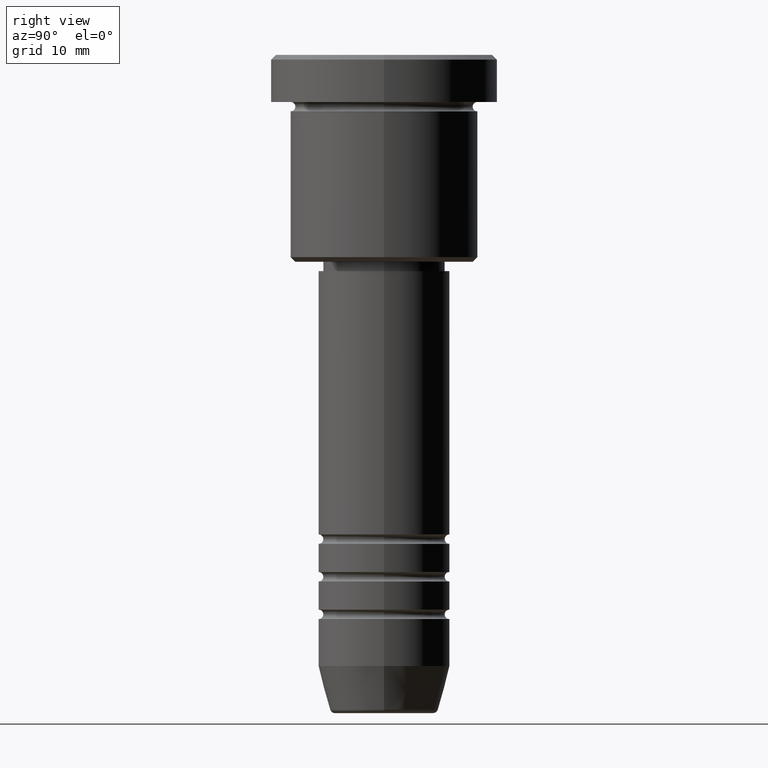
[diagram: clean part render]
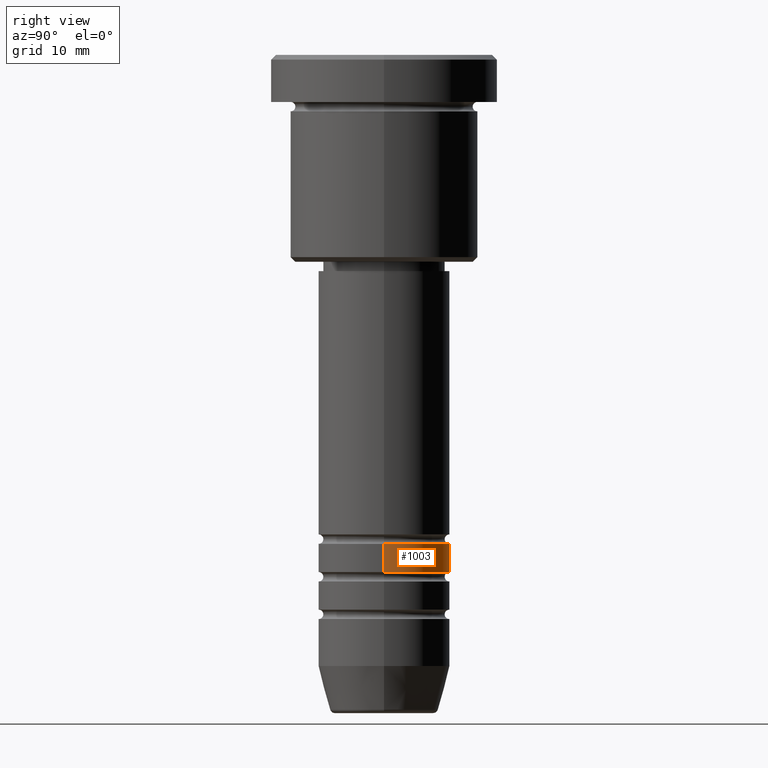
[diagram: same view with one face highlighted and labeled with its STEP entity id]
A machine part, right view. The second image highlights one B-rep face of the part: STEP entity #1003.
In plain terms, the highlighted cylindrical surface (partial cylindrical patch) has radius 7 mm, axis along (-0, -0, 1).
Its self-contained STEP definition (entity closure, byte-faithful):
#52 = CARTESIAN_POINT ( 'NONE',  ( 0.000000000000000000, 0.000000000000000000, -54.99999999999999289 ) ) ;
#56 = LINE ( 'NONE', #776, #902 ) ;
#75 = CARTESIAN_POINT ( 'NONE',  ( 7.000000000000002665, 0.000000000000000000, -54.99999999999999289 ) ) ;
#97 = VERTEX_POINT ( 'NONE', #75 ) ;
#99 = AXIS2_PLACEMENT_3D ( 'NONE', #52, #960, #333 ) ;
#104 = EDGE_CURVE ( 'NONE', #1062, #679, #878, .T. ) ;
#139 = EDGE_LOOP ( 'NONE', ( #1056, #398, #216, #207 ) ) ;
#154 = DIRECTION ( 'NONE',  ( 1.000000000000000000, 0.000000000000000000, 0.000000000000000000 ) ) ;
#207 = ORIENTED_EDGE ( 'NONE', *, *, #882, .F. ) ;
#216 = ORIENTED_EDGE ( 'NONE', *, *, #104, .F. ) ;
#250 = CARTESIAN_POINT ( 'NONE',  ( 0.000000000000000000, 0.000000000000000000, -52.00000000000000000 ) ) ;
#252 = EDGE_CURVE ( 'NONE', #97, #1015, #1082, .T. ) ;
#268 = CARTESIAN_POINT ( 'NONE',  ( 0.000000000000000000, 0.000000000000000000, 0.000000000000000000 ) ) ;
#333 = DIRECTION ( 'NONE',  ( 1.000000000000000000, 0.000000000000000000, 0.000000000000000000 ) ) ;
#364 = CYLINDRICAL_SURFACE ( 'NONE', #854, 7.000000000000000888 ) ;
#369 = CARTESIAN_POINT ( 'NONE',  ( -7.000000000000000000, 8.572527594031473190E-16, -52.00000000000000000 ) ) ;
#374 = AXIS2_PLACEMENT_3D ( 'NONE', #250, #969, #154 ) ;
#398 = ORIENTED_EDGE ( 'NONE', *, *, #859, .T. ) ;
#612 = LINE ( 'NONE', #860, #1042 ) ;
#679 = VERTEX_POINT ( 'NONE', #369 ) ;
#714 = DIRECTION ( 'NONE',  ( 1.000000000000000000, 0.000000000000000000, 0.000000000000000000 ) ) ;
#776 = CARTESIAN_POINT ( 'NONE',  ( -7.000000000000000888, 8.572527594031474176E-16, 0.000000000000000000 ) ) ;
#781 = DIRECTION ( 'NONE',  ( -0.000000000000000000, -0.000000000000000000, 1.000000000000000000 ) ) ;
#802 = CARTESIAN_POINT ( 'NONE',  ( -7.000000000000002665, 8.572527594031475162E-16, -54.99999999999999289 ) ) ;
#849 = DIRECTION ( 'NONE',  ( -0.000000000000000000, -0.000000000000000000, 1.000000000000000000 ) ) ;
#854 = AXIS2_PLACEMENT_3D ( 'NONE', #268, #888, #714 ) ;
#859 = EDGE_CURVE ( 'NONE', #1015, #679, #56, .T. ) ;
#860 = CARTESIAN_POINT ( 'NONE',  ( 7.000000000000000888, 0.000000000000000000, 0.000000000000000000 ) ) ;
#878 = CIRCLE ( 'NONE', #374, 7.000000000000000000 ) ;
#882 = EDGE_CURVE ( 'NONE', #97, #1062, #612, .T. ) ;
#888 = DIRECTION ( 'NONE',  ( -0.000000000000000000, -0.000000000000000000, 1.000000000000000000 ) ) ;
#892 = CARTESIAN_POINT ( 'NONE',  ( 7.000000000000000000, 0.000000000000000000, -52.00000000000000000 ) ) ;
#902 = VECTOR ( 'NONE', #849, 1000.000000000000000 ) ;
#960 = DIRECTION ( 'NONE',  ( -0.000000000000000000, -0.000000000000000000, 1.000000000000000000 ) ) ;
#969 = DIRECTION ( 'NONE',  ( -0.000000000000000000, -0.000000000000000000, 1.000000000000000000 ) ) ;
#1003 = ADVANCED_FACE ( 'NONE', ( #1061 ), #364, .T. ) ;
#1015 = VERTEX_POINT ( 'NONE', #802 ) ;
#1042 = VECTOR ( 'NONE', #781, 1000.000000000000000 ) ;
#1056 = ORIENTED_EDGE ( 'NONE', *, *, #252, .T. ) ;
#1061 = FACE_OUTER_BOUND ( 'NONE', #139, .T. ) ;
#1062 = VERTEX_POINT ( 'NONE', #892 ) ;
#1082 = CIRCLE ( 'NONE', #99, 7.000000000000002665 ) ;